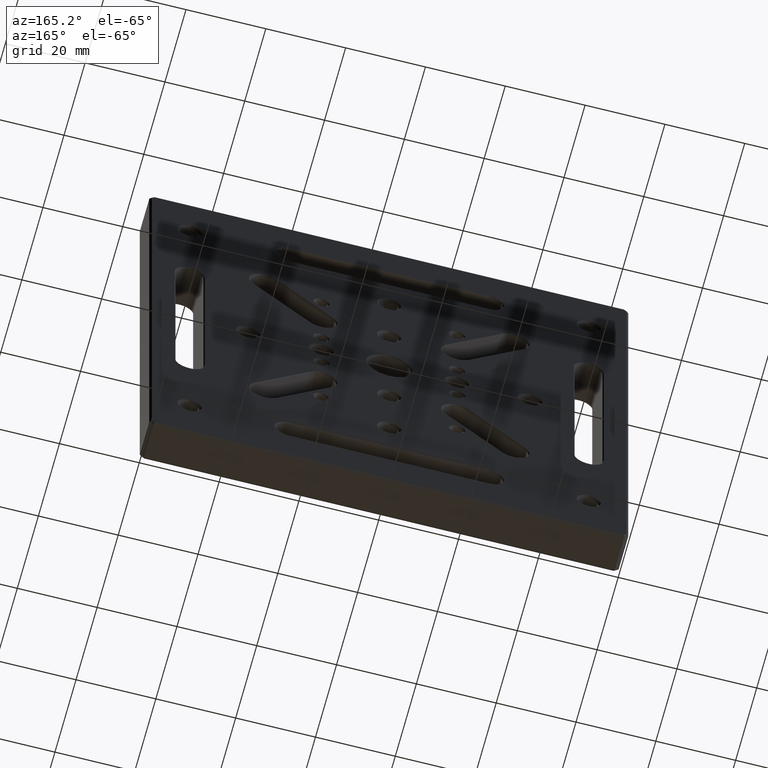
[diagram: clean part render]
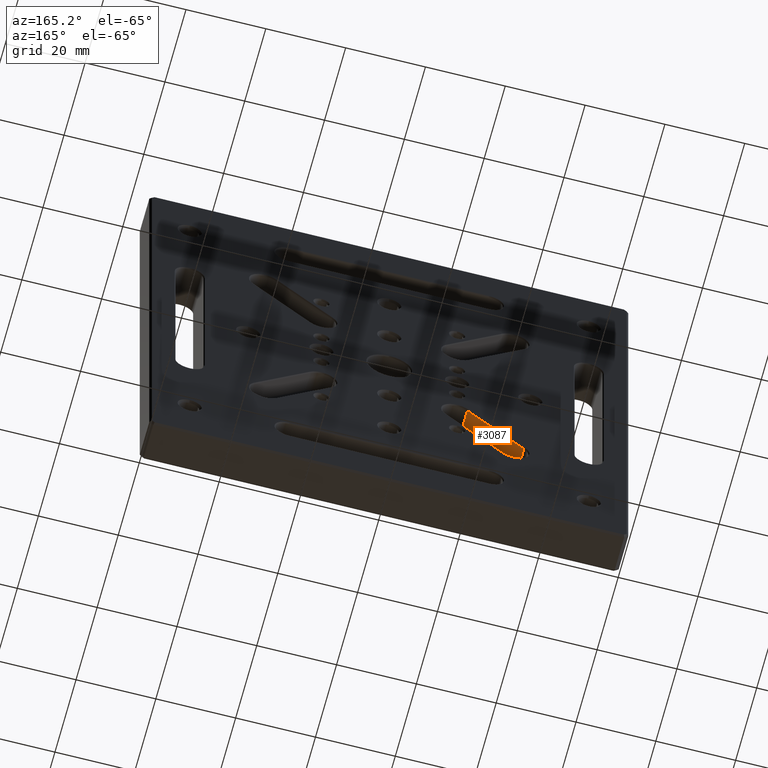
[diagram: same view with one face highlighted and labeled with its STEP entity id]
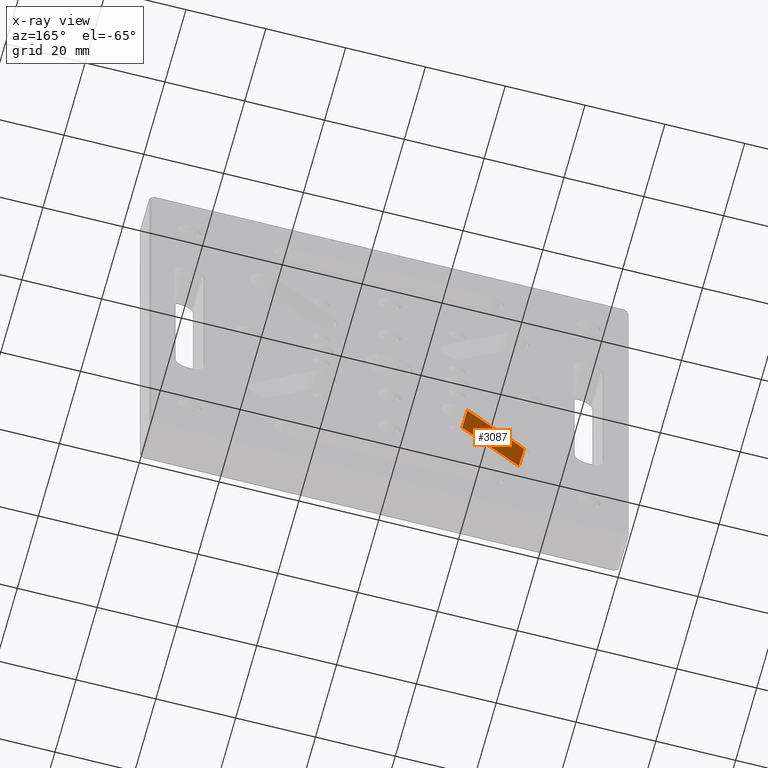
[diagram: x-ray of the same camera — body ghosted, the highlighted face saturated]
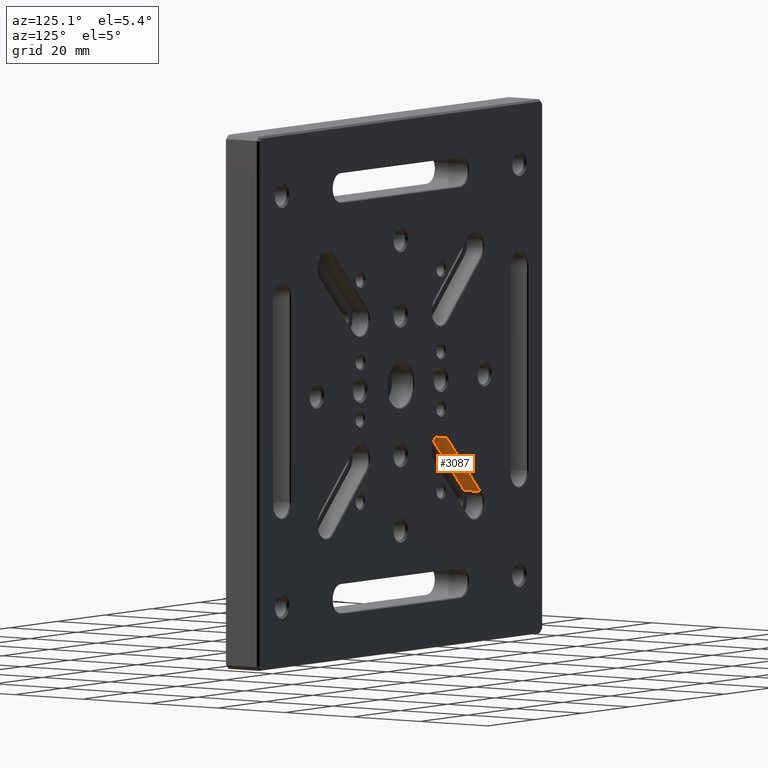
[diagram: same view with one face highlighted and labeled with its STEP entity id]
A machine part, auxiliary view. The second image highlights one B-rep face of the part: STEP entity #3087.
The next image is the same camera in x-ray: the body ghosted, the highlighted face saturated — about 0% of this face is hidden behind the body in this view.
A second angle (auxiliary view) of the same face is appended — the face is thin or edge-on in the first view.
In plain terms, the highlighted planar face has unit normal (-0.7071, 0, 0.7071).
Its self-contained STEP definition (entity closure, byte-faithful):
#45 = VERTEX_POINT ( 'NONE', #3043 ) ;
#166 = LINE ( 'NONE', #3264, #2483 ) ;
#511 = EDGE_CURVE ( 'NONE', #2391, #2385, #2119, .T. ) ;
#790 = CARTESIAN_POINT ( 'NONE',  ( -19.65165042944955331, 5.000000000000000000, -14.34834957055044669 ) ) ;
#989 = ORIENTED_EDGE ( 'NONE', *, *, #511, .T. ) ;
#1265 = ORIENTED_EDGE ( 'NONE', *, *, #2980, .F. ) ;
#1343 = PLANE ( 'NONE',  #2920 ) ;
#1345 = VERTEX_POINT ( 'NONE', #3913 ) ;
#1567 = DIRECTION ( 'NONE',  ( 0.7071067811865483499, -0.000000000000000000, 0.7071067811865467956 ) ) ;
#1681 = ORIENTED_EDGE ( 'NONE', *, *, #2487, .F. ) ;
#1709 = CARTESIAN_POINT ( 'NONE',  ( -33.79378605318051854, 9.750000000000000000, -28.49048519428139059 ) ) ;
#1763 = DIRECTION ( 'NONE',  ( -0.000000000000000000, 1.000000000000000000, -0.000000000000000000 ) ) ;
#1782 = VECTOR ( 'NONE', #3634, 999.9999999999998863 ) ;
#2119 = LINE ( 'NONE', #2403, #2202 ) ;
#2202 = VECTOR ( 'NONE', #1763, 1000.000000000000000 ) ;
#2275 = CARTESIAN_POINT ( 'NONE',  ( -19.65165042944955331, 9.750000000000000000, -14.34834957055044669 ) ) ;
#2385 = VERTEX_POINT ( 'NONE', #1709 ) ;
#2391 = VERTEX_POINT ( 'NONE', #4008 ) ;
#2403 = CARTESIAN_POINT ( 'NONE',  ( -33.79378605318051854, 5.000000000000000000, -28.49048519428139059 ) ) ;
#2483 = VECTOR ( 'NONE', #1567, 999.9999999999998863 ) ;
#2487 = EDGE_CURVE ( 'NONE', #45, #1345, #2750, .T. ) ;
#2673 = DIRECTION ( 'NONE',  ( 0.7071067811865483499, 0.000000000000000000, 0.7071067811865467956 ) ) ;
#2694 = FACE_OUTER_BOUND ( 'NONE', #3846, .T. ) ;
#2750 = LINE ( 'NONE', #790, #4385 ) ;
#2920 = AXIS2_PLACEMENT_3D ( 'NONE', #4059, #2987, #2673 ) ;
#2980 = EDGE_CURVE ( 'NONE', #2391, #45, #166, .T. ) ;
#2987 = DIRECTION ( 'NONE',  ( -0.7071067811865467956, 0.000000000000000000, 0.7071067811865483499 ) ) ;
#3043 = CARTESIAN_POINT ( 'NONE',  ( -19.65165042944955331, 5.000000000000000000, -14.34834957055044669 ) ) ;
#3087 = ADVANCED_FACE ( 'NONE', ( #2694 ), #1343, .F. ) ;
#3264 = CARTESIAN_POINT ( 'NONE',  ( -19.65165042944955331, 5.000000000000000000, -14.34834957055044669 ) ) ;
#3343 = LINE ( 'NONE', #2275, #1782 ) ;
#3633 = EDGE_CURVE ( 'NONE', #2385, #1345, #3343, .T. ) ;
#3634 = DIRECTION ( 'NONE',  ( 0.7071067811865483499, 0.000000000000000000, 0.7071067811865467956 ) ) ;
#3846 = EDGE_LOOP ( 'NONE', ( #989, #4275, #1681, #1265 ) ) ;
#3864 = DIRECTION ( 'NONE',  ( -0.000000000000000000, 1.000000000000000000, -0.000000000000000000 ) ) ;
#3913 = CARTESIAN_POINT ( 'NONE',  ( -19.65165042944955331, 9.750000000000000000, -14.34834957055044669 ) ) ;
#4008 = CARTESIAN_POINT ( 'NONE',  ( -33.79378605318051854, 5.000000000000000000, -28.49048519428139059 ) ) ;
#4059 = CARTESIAN_POINT ( 'NONE',  ( -19.65165042944955331, 5.000000000000000000, -14.34834957055044669 ) ) ;
#4275 = ORIENTED_EDGE ( 'NONE', *, *, #3633, .T. ) ;
#4385 = VECTOR ( 'NONE', #3864, 1000.000000000000000 ) ;